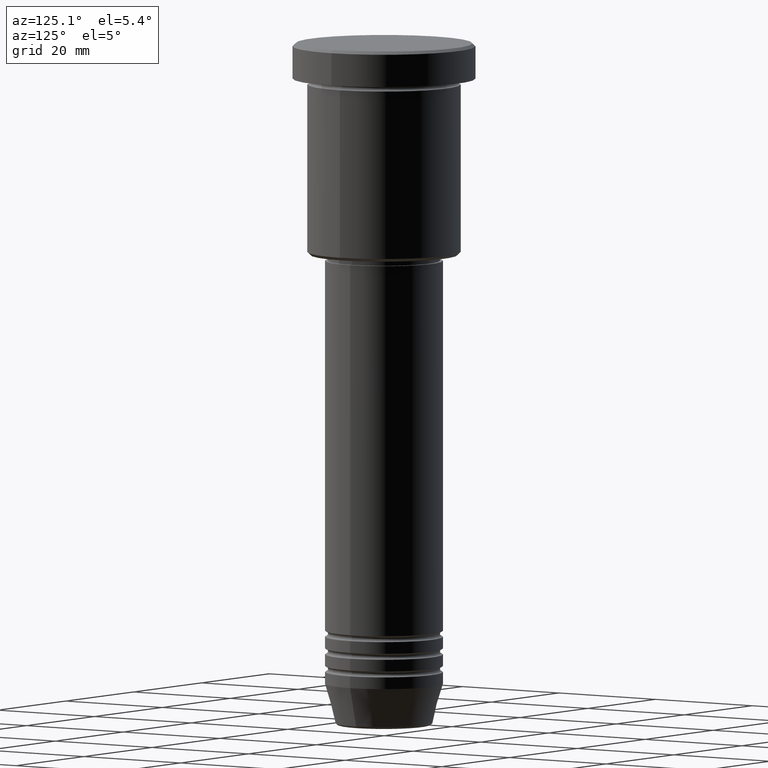
[diagram: clean part render]
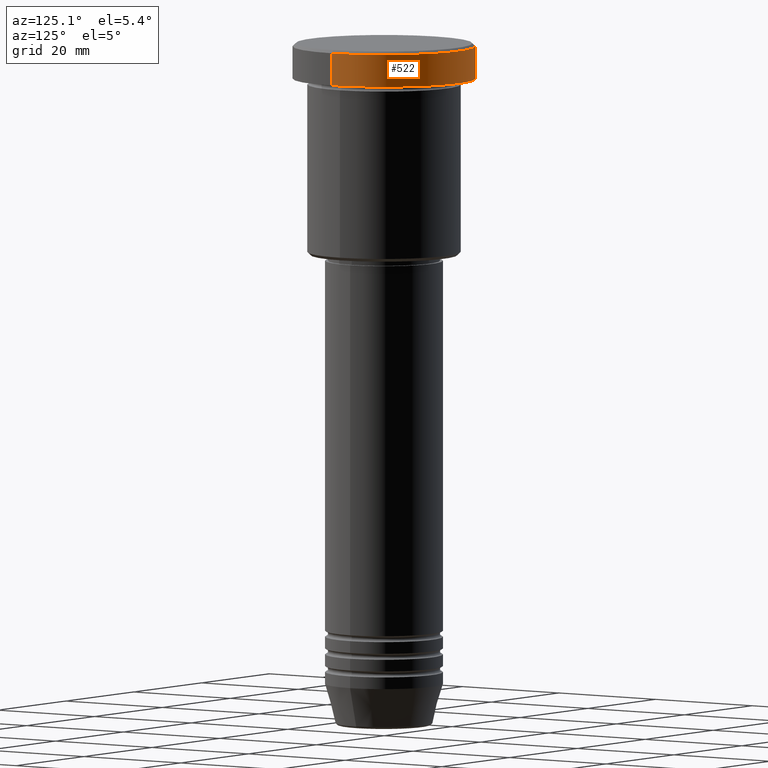
[diagram: same view with one face highlighted and labeled with its STEP entity id]
A machine part, auxiliary view. The second image highlights one B-rep face of the part: STEP entity #522.
In plain terms, the highlighted cylindrical surface (partial cylindrical patch) has radius 15.5 mm, axis along (-0, -0, 1).
Its self-contained STEP definition (entity closure, byte-faithful):
#44 = LINE ( 'NONE', #1063, #824 ) ;
#101 = CYLINDRICAL_SURFACE ( 'NONE', #573, 15.50000000000000000 ) ;
#109 = CARTESIAN_POINT ( 'NONE',  ( 0.000000000000000000, 0.000000000000000000, 0.000000000000000000 ) ) ;
#143 = ORIENTED_EDGE ( 'NONE', *, *, #146, .F. ) ;
#146 = EDGE_CURVE ( 'NONE', #161, #1025, #1035, .T. ) ;
#161 = VERTEX_POINT ( 'NONE', #1115 ) ;
#197 = CARTESIAN_POINT ( 'NONE',  ( -15.50000000000000000, 1.898202538678397557E-15, -0.4999999999999709677 ) ) ;
#277 = FACE_OUTER_BOUND ( 'NONE', #508, .T. ) ;
#296 = AXIS2_PLACEMENT_3D ( 'NONE', #318, #667, #332 ) ;
#318 = CARTESIAN_POINT ( 'NONE',  ( 0.000000000000000000, 0.000000000000000000, -5.999999999999995559 ) ) ;
#332 = DIRECTION ( 'NONE',  ( 1.000000000000000000, 0.000000000000000000, 0.000000000000000000 ) ) ;
#355 = CIRCLE ( 'NONE', #296, 15.50000000000000000 ) ;
#425 = EDGE_CURVE ( 'NONE', #880, #1025, #789, .T. ) ;
#460 = CARTESIAN_POINT ( 'NONE',  ( -15.50000000000000000, 1.898202538678397557E-15, -5.999999999999995559 ) ) ;
#484 = CARTESIAN_POINT ( 'NONE',  ( 15.50000000000000000, 0.000000000000000000, -0.4999999999999709677 ) ) ;
#497 = VECTOR ( 'NONE', #755, 1000.000000000000000 ) ;
#499 = AXIS2_PLACEMENT_3D ( 'NONE', #1174, #1119, #911 ) ;
#508 = EDGE_LOOP ( 'NONE', ( #633, #920, #1036, #143 ) ) ;
#522 = ADVANCED_FACE ( 'NONE', ( #277 ), #101, .T. ) ;
#573 = AXIS2_PLACEMENT_3D ( 'NONE', #109, #631, #730 ) ;
#631 = DIRECTION ( 'NONE',  ( -0.000000000000000000, -0.000000000000000000, 1.000000000000000000 ) ) ;
#633 = ORIENTED_EDGE ( 'NONE', *, *, #669, .T. ) ;
#638 = EDGE_CURVE ( 'NONE', #931, #880, #44, .T. ) ;
#667 = DIRECTION ( 'NONE',  ( -0.000000000000000000, -0.000000000000000000, 1.000000000000000000 ) ) ;
#669 = EDGE_CURVE ( 'NONE', #161, #931, #355, .T. ) ;
#730 = DIRECTION ( 'NONE',  ( 1.000000000000000000, 0.000000000000000000, 0.000000000000000000 ) ) ;
#755 = DIRECTION ( 'NONE',  ( -0.000000000000000000, -0.000000000000000000, 1.000000000000000000 ) ) ;
#789 = CIRCLE ( 'NONE', #499, 15.50000000000000000 ) ;
#824 = VECTOR ( 'NONE', #839, 1000.000000000000000 ) ;
#839 = DIRECTION ( 'NONE',  ( -0.000000000000000000, -0.000000000000000000, 1.000000000000000000 ) ) ;
#880 = VERTEX_POINT ( 'NONE', #197 ) ;
#911 = DIRECTION ( 'NONE',  ( 1.000000000000000000, 0.000000000000000000, 0.000000000000000000 ) ) ;
#920 = ORIENTED_EDGE ( 'NONE', *, *, #638, .T. ) ;
#931 = VERTEX_POINT ( 'NONE', #460 ) ;
#1025 = VERTEX_POINT ( 'NONE', #484 ) ;
#1028 = CARTESIAN_POINT ( 'NONE',  ( 15.50000000000000000, 0.000000000000000000, 0.000000000000000000 ) ) ;
#1035 = LINE ( 'NONE', #1028, #497 ) ;
#1036 = ORIENTED_EDGE ( 'NONE', *, *, #425, .T. ) ;
#1063 = CARTESIAN_POINT ( 'NONE',  ( -15.50000000000000000, 1.898202538678397557E-15, 0.000000000000000000 ) ) ;
#1115 = CARTESIAN_POINT ( 'NONE',  ( 15.50000000000000000, 0.000000000000000000, -5.999999999999995559 ) ) ;
#1119 = DIRECTION ( 'NONE',  ( 0.000000000000000000, 0.000000000000000000, -1.000000000000000000 ) ) ;
#1174 = CARTESIAN_POINT ( 'NONE',  ( 0.000000000000000000, 0.000000000000000000, -0.4999999999999709677 ) ) ;